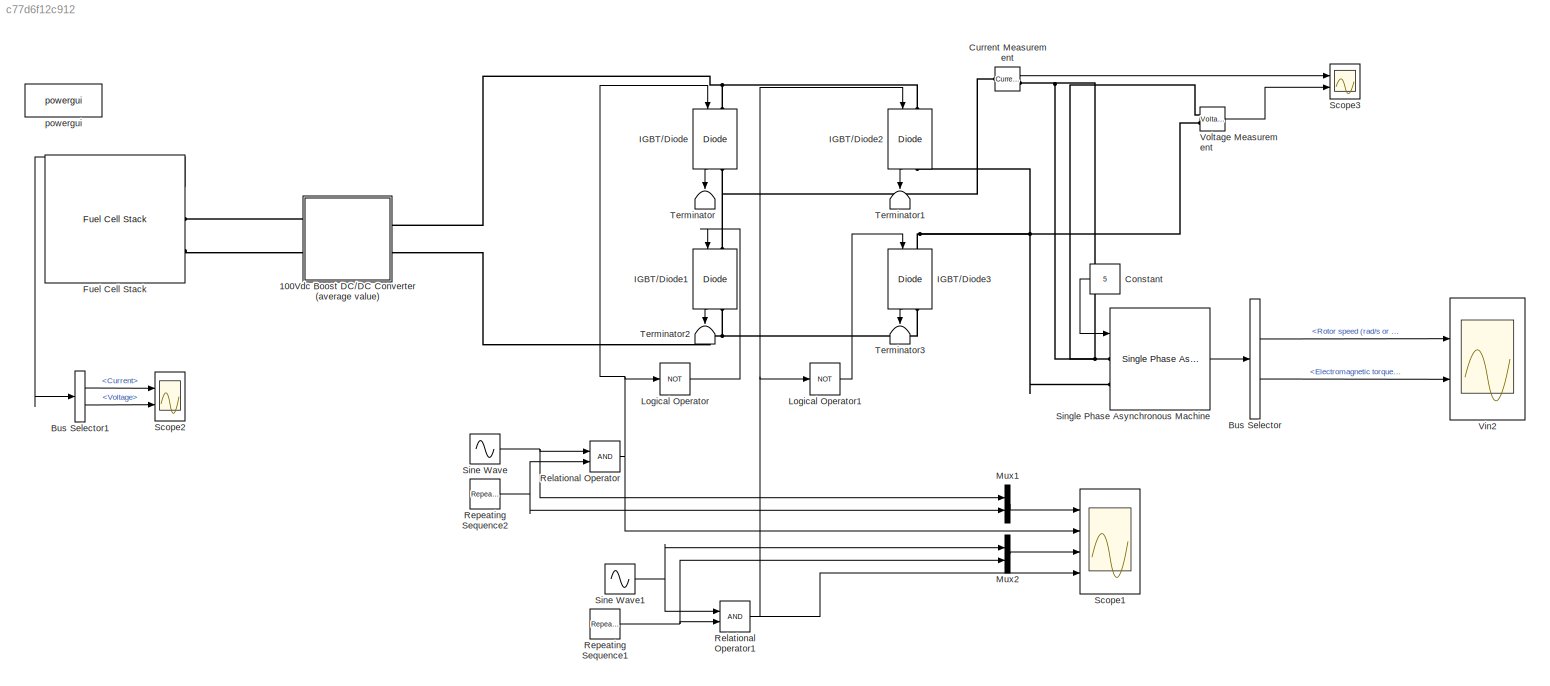
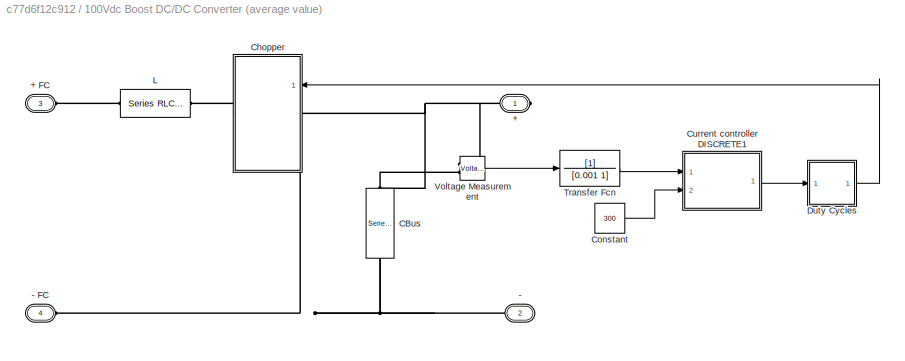
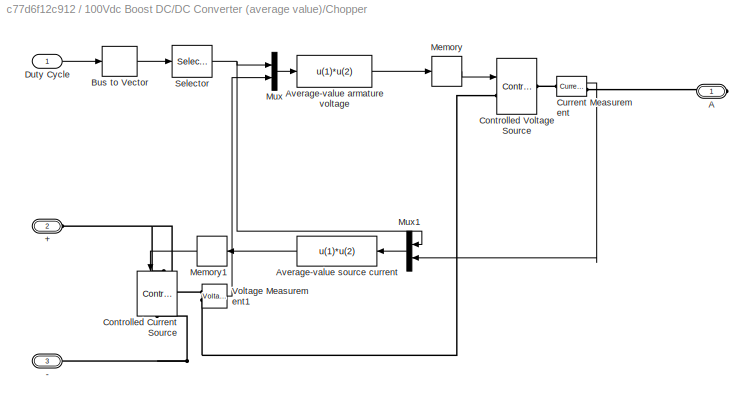
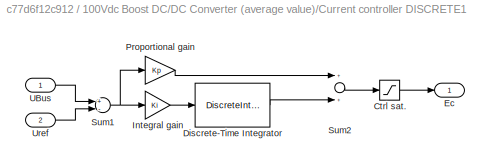
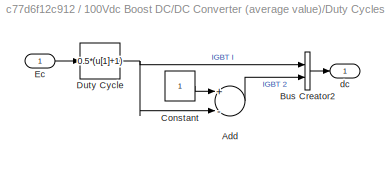
MODEL slx_c77d6f12c912
KIND model
CONFIG AbsTol = auto
CONFIG EnableMultiTasking = on
CONFIG FixedStep = auto
CONFIG MaxStep = auto
CONFIG MinStep = auto
CONFIG RelTol = 1e-3
CONFIG SampleTimeConstraint = Unconstrained
CONFIG Solver = ode45
CONFIG SolverName = ode45
CONFIG StartTime = 0.0
CONFIG StopTime = 5
BLOCK [SubSystem] 100Vdc Boost DC//DC Converter (average value)
  Ports = [0, 0, 0, 0, 0, 2, 2]
  RequestExecContextInheritance = off
BLOCK [PMIOPort] 100Vdc Boost DC//DC Converter (average value)/+
  Side = Right
  Tag = PMCPort
BLOCK [PMIOPort] 100Vdc Boost DC//DC Converter (average value)/+ FC
  Port = 3
  Side = Left
  Tag = PMCPort
BLOCK [PMIOPort] 100Vdc Boost DC//DC Converter (average value)/-
  Port = 2
  Side = Right
  Tag = PMCPort
BLOCK [PMIOPort] 100Vdc Boost DC//DC Converter (average value)/- FC
  Port = 4
  Side = Left
  Tag = PMCPort
BLOCK [Reference] 100Vdc Boost DC//DC Converter (average value)/CBus  REF=powerlib/Elements/Series RLC Branch
  Ports = [0, 0, 0, 0, 0, 1, 1]
  SourceBlock = powerlib/Elements/Series RLC Branch
  SourceProductBaseCode = PS
  SourceProductName = Simscape Electrical
  SourceType = Series RLC Branch
BLOCK [SubSystem] 100Vdc Boost DC//DC Converter (average value)/Chopper
  Ports = [1, 0, 0, 0, 0, 2, 1]
  RequestExecContextInheritance = off
BLOCK [PMIOPort] 100Vdc Boost DC//DC Converter (average value)/Chopper/+
  Port = 2
  Side = Left
BLOCK [PMIOPort] 100Vdc Boost DC//DC Converter (average value)/Chopper/-
  Port = 3
  Side = Left
BLOCK [PMIOPort] 100Vdc Boost DC//DC Converter (average value)/Chopper/A
  Side = Right
BLOCK [Fcn] 100Vdc Boost DC//DC Converter (average value)/Chopper/Average-value armature voltage
  Expr = u(1)*u(2)
BLOCK [Fcn] 100Vdc Boost DC//DC Converter (average value)/Chopper/Average-value source current
  Expr = u(1)*u(2)
BLOCK [BusToVector] 100Vdc Boost DC//DC Converter (average value)/Chopper/Bus to Vector
BLOCK [Reference] 100Vdc Boost DC//DC Converter (average value)/Chopper/Controlled Current Source  REF=powerlib/Electrical
Sources/Controlled Current Source
  Ports = [1, 0, 0, 0, 0, 1, 1]
  SourceBlock = powerlib/Electrical\nSources/Controlled Current Source
  SourceProductBaseCode = PS
  SourceProductName = Simscape Electrical
  SourceType = Controlled Current Source
BLOCK [Reference] 100Vdc Boost DC//DC Converter (average value)/Chopper/Controlled Voltage Source  REF=powerlib/Electrical
Sources/Controlled Voltage Source
  Ports = [1, 0, 0, 0, 0, 1, 1]
  SourceBlock = powerlib/Electrical\nSources/Controlled Voltage Source
  SourceProductBaseCode = PS
  SourceProductName = Simscape Electrical
  SourceType = Controlled Voltage Source
BLOCK [Reference] 100Vdc Boost DC//DC Converter (average value)/Chopper/Current Measurement  REF=powerlib/Measurements/Current Measurement
  AttributesFormatString = \n
  Ports = [0, 1, 0, 0, 0, 1, 1]
  SourceBlock = powerlib/Measurements/Current Measurement
  SourceProductBaseCode = PS
  SourceProductName = Simscape Electrical
  SourceType = Current Measurement
  Tag = PoWeRsYsTeMmEaSuReMeNt
BLOCK [Inport] 100Vdc Boost DC//DC Converter (average value)/Chopper/Duty Cycle
  IconDisplay = Port number
BLOCK [Memory] 100Vdc Boost DC//DC Converter (average value)/Chopper/Memory
BLOCK [Memory] 100Vdc Boost DC//DC Converter (average value)/Chopper/Memory1
BLOCK [Mux] 100Vdc Boost DC//DC Converter (average value)/Chopper/Mux
  DisplayOption = bar
  Inputs = 2
  Ports = [2, 1]
BLOCK [Mux] 100Vdc Boost DC//DC Converter (average value)/Chopper/Mux1
  DisplayOption = bar
  Inputs = 2
  Ports = [2, 1]
BLOCK [Selector] 100Vdc Boost DC//DC Converter (average value)/Chopper/Selector
  IndexOptions = Index vector (dialog)
  Indices = [1]
  InputPortWidth = 2
  OutputSizes = 1
  Ports = [1, 1]
BLOCK [Reference] 100Vdc Boost DC//DC Converter (average value)/Chopper/Voltage Measurement1  REF=powerlib/Measurements/Voltage Measurement
  AttributesFormatString = \n
  Ports = [0, 1, 0, 0, 0, 2]
  SourceBlock = powerlib/Measurements/Voltage Measurement
  SourceProductBaseCode = PS
  SourceProductName = Simscape Electrical
  SourceType = Voltage Measurement
  Tag = PoWeRsYsTeMmEaSuReMeNt
BLOCK [Constant] 100Vdc Boost DC//DC Converter (average value)/Constant
  Value = 300
BLOCK [SubSystem] 100Vdc Boost DC//DC Converter (average value)/Current controller DISCRETE1
  Ports = [2, 1]
  RequestExecContextInheritance = off
BLOCK [Saturate] 100Vdc Boost DC//DC Converter (average value)/Current controller DISCRETE1/Ctrl sat.
  InputPortMap = u0
  LowerLimit = -0.95
  Ports = [1, 1]
  UpperLimit = 0.95
BLOCK [DiscreteIntegrator] 100Vdc Boost DC//DC Converter (average value)/Current controller DISCRETE1/Discrete-Time Integrator
  ICPrevOutput = DiscIntNeverNeededParam
  ICPrevScaledInput = DiscIntNeverNeededParam
  IntegratorMethod = Integration: Trapezoidal
  LimitOutput = on
  LowerSaturationLimit = -0.95
  Ports = [1, 1]
  SampleTime = Ts
  UpperSaturationLimit = 0.95
BLOCK [Outport] 100Vdc Boost DC//DC Converter (average value)/Current controller DISCRETE1/Ec
  IconDisplay = Port number
  InitialOutput = 0
BLOCK [Gain] 100Vdc Boost DC//DC Converter (average value)/Current controller DISCRETE1/Integral gain
  Gain = Ki
BLOCK [Gain] 100Vdc Boost DC//DC Converter (average value)/Current controller DISCRETE1/Proportional gain
  Gain = Kp
BLOCK [Sum] 100Vdc Boost DC//DC Converter (average value)/Current controller DISCRETE1/Sum1
  Inputs = +-
  Ports = [2, 1]
BLOCK [Sum] 100Vdc Boost DC//DC Converter (average value)/Current controller DISCRETE1/Sum2
  Ports = [2, 1]
BLOCK [Inport] 100Vdc Boost DC//DC Converter (average value)/Current controller DISCRETE1/UBus
  IconDisplay = Port number
BLOCK [Inport] 100Vdc Boost DC//DC Converter (average value)/Current controller DISCRETE1/Uref
  IconDisplay = Port number
  Port = 2
BLOCK [SubSystem] 100Vdc Boost DC//DC Converter (average value)/Duty Cycles
  Ports = [1, 1]
  RequestExecContextInheritance = off
BLOCK [Sum] 100Vdc Boost DC//DC Converter (average value)/Duty Cycles/Add
  InputSameDT = off
  Inputs = +-
  OutDataTypeStr = Inherit: Inherit via internal rule
  Ports = [2, 1]
  SaturateOnIntegerOverflow = off
BLOCK [BusCreator] 100Vdc Boost DC//DC Converter (average value)/Duty Cycles/Bus Creator2
  DisplayOption = bar
  InheritFromInputs = on
  Inputs = 2
  Ports = [2, 1]
BLOCK [Constant] 100Vdc Boost DC//DC Converter (average value)/Duty Cycles/Constant
BLOCK [Fcn] 100Vdc Boost DC//DC Converter (average value)/Duty Cycles/Duty Cycle
  Expr = 0.5*(u[1]+1)
BLOCK [Inport] 100Vdc Boost DC//DC Converter (average value)/Duty Cycles/Ec
  IconDisplay = Port number
BLOCK [Outport] 100Vdc Boost DC//DC Converter (average value)/Duty Cycles/dc
  IconDisplay = Port number
BLOCK [Reference] 100Vdc Boost DC//DC Converter (average value)/L  REF=powerlib/Elements/Series RLC Branch
  Ports = [0, 0, 0, 0, 0, 1, 1]
  SourceBlock = powerlib/Elements/Series RLC Branch
  SourceProductBaseCode = PS
  SourceProductName = Simscape Electrical
  SourceType = Series RLC Branch
BLOCK [TransferFcn] 100Vdc Boost DC//DC Converter (average value)/Transfer Fcn
  Denominator = [0.001 1]
BLOCK [Reference] 100Vdc Boost DC//DC Converter (average value)/Voltage Measurement  REF=powerlib/Measurements/Voltage Measurement
  Ports = [0, 1, 0, 0, 0, 2]
  SourceBlock = powerlib/Measurements/Voltage Measurement
  SourceProductBaseCode = PS
  SourceProductName = Simscape Electrical
  SourceType = Voltage Measurement
BLOCK [BusSelector] Bus Selector
  OutputAsBus = off
  OutputSignals = Mechanical.Rotor speed (rad/s or pu),Mechanical.Electromagnetic torque Te (N*m or pu)
  Ports = [1, 2]
BLOCK [BusSelector] Bus Selector1
  OutputAsBus = off
  OutputSignals = Current,Voltage
  Ports = [1, 2]
BLOCK [Constant] Constant
  Value = 5
BLOCK [Reference] Current Measurement  REF=powerlib/Measurements/Current Measurement
  Ports = [0, 1, 0, 0, 0, 1, 1]
  SourceBlock = powerlib/Measurements/Current Measurement
  SourceProductBaseCode = PS
  SourceProductName = Simscape Electrical
  SourceType = Current Measurement
BLOCK [Reference] Fuel Cell Stack  REF=electricdrivelib/Extra Sources/Fuel Cell Stack
  Ports = [0, 1, 0, 0, 0, 0, 2]
  SourceBlock = electricdrivelib/Extra Sources/Fuel Cell Stack
  SourceProductBaseCode = PS
  SourceProductName = Simscape Electrical
  SourceType = Fuel Cell Stack
BLOCK [Reference] IGBT//Diode  REF=powerlib/Power
Electronics/IGBT//Diode
  Ports = [1, 1, 0, 0, 0, 1, 1]
  SourceBlock = powerlib/Power\nElectronics/IGBT//Diode
  SourceProductBaseCode = PS
  SourceProductName = Simscape Electrical
  SourceType = IGBT/Diode
BLOCK [Reference] IGBT//Diode1  REF=powerlib/Power
Electronics/IGBT//Diode
  Ports = [1, 1, 0, 0, 0, 1, 1]
  SourceBlock = powerlib/Power\nElectronics/IGBT//Diode
  SourceProductBaseCode = PS
  SourceProductName = Simscape Electrical
  SourceType = IGBT/Diode
BLOCK [Reference] IGBT//Diode2  REF=powerlib/Power
Electronics/IGBT//Diode
  Ports = [1, 1, 0, 0, 0, 1, 1]
  SourceBlock = powerlib/Power\nElectronics/IGBT//Diode
  SourceProductBaseCode = PS
  SourceProductName = Simscape Electrical
  SourceType = IGBT/Diode
BLOCK [Reference] IGBT//Diode3  REF=powerlib/Power
Electronics/IGBT//Diode
  Ports = [1, 1, 0, 0, 0, 1, 1]
  SourceBlock = powerlib/Power\nElectronics/IGBT//Diode
  SourceProductBaseCode = PS
  SourceProductName = Simscape Electrical
  SourceType = IGBT/Diode
BLOCK [Logic] Logical Operator
  AllPortsSameDT = off
  Operator = NOT
  OutDataTypeStr = boolean
  Ports = [1, 1]
BLOCK [Logic] Logical Operator1
  AllPortsSameDT = off
  Operator = NOT
  OutDataTypeStr = boolean
  Ports = [1, 1]
BLOCK [Mux] Mux1
  DisplayOption = bar
  Inputs = 2
  Ports = [2, 1]
BLOCK [Mux] Mux2
  DisplayOption = bar
  Inputs = 2
  Ports = [2, 1]
BLOCK [RelationalOperator] Relational Operator
  InputSameDT = off
  Ports = [2, 1]
BLOCK [RelationalOperator] Relational Operator1
  InputSameDT = off
  OutDataTypeStr = boolean
  Ports = [2, 1]
BLOCK [Reference] Repeating Sequence1  REF=simulink/Sources/Repeating
Sequence
  Ports = [0, 1]
  SourceBlock = simulink/Sources/Repeating\nSequence
  SourceProductBaseCode = SL
  SourceProductName = Simulink
  SourceType = Repeating table
BLOCK [Reference] Repeating Sequence2  REF=simulink/Sources/Repeating
Sequence
  Ports = [0, 1]
  SourceBlock = simulink/Sources/Repeating\nSequence
  SourceProductBaseCode = SL
  SourceProductName = Simulink
  SourceType = Repeating table
BLOCK [Scope] Scope1
  Floating = off
  NumInputPorts = 4
  Ports = [4]
  ScopeSpecificationString = Simulink.scopes.TimeScopeBlockCfg('CurrentConfiguration', extmgr.ConfigurationSet(extmgr.Configuration('Core','General UI',true),extmgr.Configuration('Core','Source UI',true),extmgr.Configuration('Sources','WiredSimulink',true,'DataLoggingVariableName','ScopeData1','DataLoggingSaveFormat','StructureWithTime','DataLoggingDecimation','1','DataLoggingDecimateData',true),extmgr.Configuration('Visuals'...<+3852ch>
BLOCK [Scope] Scope2
  Floating = off
  NumInputPorts = 2
  Ports = [2]
  ScopeSpecificationString = Simulink.scopes.TimeScopeBlockCfg('CurrentConfiguration', extmgr.ConfigurationSet(extmgr.Configuration('Core','General UI',true),extmgr.Configuration('Core','Source UI',true),extmgr.Configuration('Sources','WiredSimulink',true,'DataLoggingVariableName','ScopeData3','DataLoggingSaveFormat','StructureWithTime','DataLoggingLimitDataPoints',true,'DataLoggingDecimation','1','DataLoggingDecimateData',tr...<+2369ch>
BLOCK [Scope] Scope3
  Floating = off
  NumInputPorts = 2
  Ports = [2]
  ScopeSpecificationString = Simulink.scopes.TimeScopeBlockCfg('CurrentConfiguration', extmgr.ConfigurationSet(extmgr.Configuration('Core','General UI',true),extmgr.Configuration('Core','Source UI',true),extmgr.Configuration('Sources','WiredSimulink',true,'DataLogging',true,'DataLoggingSaveFormat','StructureWithTime','DataLoggingDecimation','1','DataLoggingDecimateData',true),extmgr.Configuration('Visuals','Time Domain',true,...<+2335ch>
BLOCK [Sin] Sine Wave
  Frequency = 2*pi*50
  Ports = [0, 1]
  SampleTime = 50e-6
BLOCK [Sin] Sine Wave1
  Frequency = 2*pi*50
  Phase = pi
  Ports = [0, 1]
  SampleTime = 50e-6
BLOCK [Reference] Single Phase Asynchronous Machine  REF=powerlib/Machines/Single Phase
Asynchronous Machine
  Ports = [1, 1, 0, 0, 0, 2]
  SourceBlock = powerlib/Machines/Single Phase\nAsynchronous Machine
  SourceProductBaseCode = PS
  SourceProductName = Simscape Electrical
  SourceType = Single Phase Asynchronous Machine
BLOCK [Terminator] Terminator
BLOCK [Terminator] Terminator1
BLOCK [Terminator] Terminator2
BLOCK [Terminator] Terminator3
BLOCK [Scope] Vin2
  Floating = off
  NumInputPorts = 2
  Ports = [2]
  ScopeSpecificationString = Simulink.scopes.TimeScopeBlockCfg('CurrentConfiguration', extmgr.ConfigurationSet(extmgr.Configuration('Core','General UI',true),extmgr.Configuration('Core','Source UI',true),extmgr.Configuration('Sources','WiredSimulink',true,'DataLogging',true,'DataLoggingVariableName','ScopeData2','DataLoggingSaveFormat','StructureWithTime','DataLoggingDecimation','1','DataLoggingDecimateData',true),extmgr.Conf...<+2402ch>
BLOCK [Reference] Voltage Measurement  REF=powerlib/Measurements/Voltage Measurement
  Ports = [0, 1, 0, 0, 0, 2]
  SourceBlock = powerlib/Measurements/Voltage Measurement
  SourceProductBaseCode = PS
  SourceProductName = Simscape Electrical
  SourceType = Voltage Measurement
BLOCK [Reference] powergui  REF=powerlib/powergui
  Ports = []
  SourceBlock = powerlib/powergui
  SourceProductBaseCode = PS
  SourceProductName = Simscape Electrical
  SourceType = PSB option menu block
LINE 100Vdc Boost DC//DC Converter (average value)/Chopper/Average-value armature voltage:1 -> 100Vdc Boost DC//DC Converter (average value)/Chopper/Memory:1
LINE 100Vdc Boost DC//DC Converter (average value)/Chopper/Average-value source current:1 -> 100Vdc Boost DC//DC Converter (average value)/Chopper/Memory1:1
LINE 100Vdc Boost DC//DC Converter (average value)/Chopper/Bus to Vector:1 -> 100Vdc Boost DC//DC Converter (average value)/Chopper/Selector:1
LINE 100Vdc Boost DC//DC Converter (average value)/Chopper/Current Measurement:1 -> 100Vdc Boost DC//DC Converter (average value)/Chopper/Mux1:2
LINE 100Vdc Boost DC//DC Converter (average value)/Chopper/Duty Cycle:1 -> 100Vdc Boost DC//DC Converter (average value)/Chopper/Bus to Vector:1
LINE 100Vdc Boost DC//DC Converter (average value)/Chopper/Memory1:1 -> 100Vdc Boost DC//DC Converter (average value)/Chopper/Controlled Current Source:1
LINE 100Vdc Boost DC//DC Converter (average value)/Chopper/Memory:1 -> 100Vdc Boost DC//DC Converter (average value)/Chopper/Controlled Voltage Source:1
LINE 100Vdc Boost DC//DC Converter (average value)/Chopper/Mux1:1 -> 100Vdc Boost DC//DC Converter (average value)/Chopper/Average-value source current:1
LINE 100Vdc Boost DC//DC Converter (average value)/Chopper/Mux:1 -> 100Vdc Boost DC//DC Converter (average value)/Chopper/Average-value armature voltage:1
NET 100Vdc Boost DC//DC Converter (average value)/Chopper/Selector:1 -> 100Vdc Boost DC//DC Converter (average value)/Chopper/Mux1:1, 100Vdc Boost DC//DC Converter (average value)/Chopper/Mux:1
LINE 100Vdc Boost DC//DC Converter (average value)/Chopper/Voltage Measurement1:1 -> 100Vdc Boost DC//DC Converter (average value)/Chopper/Mux:2
LINE 100Vdc Boost DC//DC Converter (average value)/Constant:1 -> 100Vdc Boost DC//DC Converter (average value)/Current controller DISCRETE1:2
LINE 100Vdc Boost DC//DC Converter (average value)/Current controller DISCRETE1/Ctrl sat.:1 -> 100Vdc Boost DC//DC Converter (average value)/Current controller DISCRETE1/Ec:1
LINE 100Vdc Boost DC//DC Converter (average value)/Current controller DISCRETE1/Discrete-Time Integrator:1 -> 100Vdc Boost DC//DC Converter (average value)/Current controller DISCRETE1/Sum2:2
LINE 100Vdc Boost DC//DC Converter (average value)/Current controller DISCRETE1/Integral gain:1 -> 100Vdc Boost DC//DC Converter (average value)/Current controller DISCRETE1/Discrete-Time Integrator:1
LINE 100Vdc Boost DC//DC Converter (average value)/Current controller DISCRETE1/Proportional gain:1 -> 100Vdc Boost DC//DC Converter (average value)/Current controller DISCRETE1/Sum2:1
NET 100Vdc Boost DC//DC Converter (average value)/Current controller DISCRETE1/Sum1:1 -> 100Vdc Boost DC//DC Converter (average value)/Current controller DISCRETE1/Integral gain:1, 100Vdc Boost DC//DC Converter (average value)/Current controller DISCRETE1/Proportional gain:1
LINE 100Vdc Boost DC//DC Converter (average value)/Current controller DISCRETE1/Sum2:1 -> 100Vdc Boost DC//DC Converter (average value)/Current controller DISCRETE1/Ctrl sat.:1
LINE 100Vdc Boost DC//DC Converter (average value)/Current controller DISCRETE1/UBus:1 -> 100Vdc Boost DC//DC Converter (average value)/Current controller DISCRETE1/Sum1:1
LINE 100Vdc Boost DC//DC Converter (average value)/Current controller DISCRETE1/Uref:1 -> 100Vdc Boost DC//DC Converter (average value)/Current controller DISCRETE1/Sum1:2
LINE 100Vdc Boost DC//DC Converter (average value)/Current controller DISCRETE1:1 -> 100Vdc Boost DC//DC Converter (average value)/Duty Cycles:1
LINE 100Vdc Boost DC//DC Converter (average value)/Duty Cycles/Add:1 -> 100Vdc Boost DC//DC Converter (average value)/Duty Cycles/Bus Creator2:2
LINE 100Vdc Boost DC//DC Converter (average value)/Duty Cycles/Bus Creator2:1 -> 100Vdc Boost DC//DC Converter (average value)/Duty Cycles/dc:1
LINE 100Vdc Boost DC//DC Converter (average value)/Duty Cycles/Constant:1 -> 100Vdc Boost DC//DC Converter (average value)/Duty Cycles/Add:1
NET 100Vdc Boost DC//DC Converter (average value)/Duty Cycles/Duty Cycle:1 -> 100Vdc Boost DC//DC Converter (average value)/Duty Cycles/Add:2, 100Vdc Boost DC//DC Converter (average value)/Duty Cycles/Bus Creator2:1
LINE 100Vdc Boost DC//DC Converter (average value)/Duty Cycles/Ec:1 -> 100Vdc Boost DC//DC Converter (average value)/Duty Cycles/Duty Cycle:1
LINE 100Vdc Boost DC//DC Converter (average value)/Duty Cycles:1 -> 100Vdc Boost DC//DC Converter (average value)/Chopper:1
LINE 100Vdc Boost DC//DC Converter (average value)/Transfer Fcn:1 -> 100Vdc Boost DC//DC Converter (average value)/Current controller DISCRETE1:1
LINE 100Vdc Boost DC//DC Converter (average value)/Voltage Measurement:1 -> 100Vdc Boost DC//DC Converter (average value)/Transfer Fcn:1
LINE Bus Selector1:1 -> Scope2:1
LINE Bus Selector1:2 -> Scope2:2
LINE Bus Selector:1 -> Vin2:1
LINE Bus Selector:2 -> Vin2:2
LINE Constant:1 -> Single Phase Asynchronous Machine:1
LINE Current Measurement:1 -> Scope3:1
LINE Fuel Cell Stack:1 -> Bus Selector1:1
LINE IGBT//Diode1:1 -> Terminator2:1
LINE IGBT//Diode2:1 -> Terminator1:1
LINE IGBT//Diode3:1 -> Terminator3:1
LINE IGBT//Diode:1 -> Terminator:1
LINE Logical Operator1:1 -> IGBT//Diode3:1
LINE Logical Operator:1 -> IGBT//Diode1:1
LINE Mux1:1 -> Scope1:1
LINE Mux2:1 -> Scope1:3
NET Relational Operator1:1 -> IGBT//Diode2:1, Logical Operator1:1, Scope1:4
NET Relational Operator:1 -> IGBT//Diode:1, Logical Operator:1, Scope1:2
NET Repeating Sequence1:1 -> Mux2:2, Relational Operator1:2
NET Repeating Sequence2:1 -> Mux1:2, Relational Operator:2
NET Sine Wave1:1 -> Mux2:1, Relational Operator1:1
NET Sine Wave:1 -> Mux1:1, Relational Operator:1
LINE Single Phase Asynchronous Machine:1 -> Bus Selector:1
LINE Voltage Measurement:1 -> Scope3:2
PLINE 100Vdc Boost DC//DC Converter (average value)/+ FC:RConn1 -- 100Vdc Boost DC//DC Converter (average value)/L:RConn1
PNET net1: 100Vdc Boost DC//DC Converter (average value)/+:RConn1 -- 100Vdc Boost DC//DC Converter (average value)/CBus:LConn1 -- 100Vdc Boost DC//DC Converter (average value)/Chopper:LConn1 -- 100Vdc Boost DC//DC Converter (average value)/Voltage Measurement:LConn1
PNET net2: 100Vdc Boost DC//DC Converter (average value)/- FC:RConn1 -- 100Vdc Boost DC//DC Converter (average value)/-:RConn1 -- 100Vdc Boost DC//DC Converter (average value)/CBus:RConn1 -- 100Vdc Boost DC//DC Converter (average value)/Chopper:LConn2 -- 100Vdc Boost DC//DC Converter (average value)/Voltage Measurement:LConn2
PNET net3: 100Vdc Boost DC//DC Converter (average value)/Chopper/+:RConn1 -- 100Vdc Boost DC//DC Converter (average value)/Chopper/Controlled Current Source:LConn1 -- 100Vdc Boost DC//DC Converter (average value)/Chopper/Voltage Measurement1:LConn1
PNET net4: 100Vdc Boost DC//DC Converter (average value)/Chopper/-:RConn1 -- 100Vdc Boost DC//DC Converter (average value)/Chopper/Controlled Current Source:RConn1 -- 100Vdc Boost DC//DC Converter (average value)/Chopper/Controlled Voltage Source:LConn1 -- 100Vdc Boost DC//DC Converter (average value)/Chopper/Voltage Measurement1:LConn2
PLINE 100Vdc Boost DC//DC Converter (average value)/Chopper/A:RConn1 -- 100Vdc Boost DC//DC Converter (average value)/Chopper/Current Measurement:RConn1
PLINE 100Vdc Boost DC//DC Converter (average value)/Chopper/Controlled Voltage Source:RConn1 -- 100Vdc Boost DC//DC Converter (average value)/Chopper/Current Measurement:LConn1
PLINE 100Vdc Boost DC//DC Converter (average value)/Chopper:RConn1 -- 100Vdc Boost DC//DC Converter (average value)/L:LConn1
PLINE 100Vdc Boost DC//DC Converter (average value):LConn1 -- Fuel Cell Stack:RConn1
PLINE 100Vdc Boost DC//DC Converter (average value):LConn2 -- Fuel Cell Stack:RConn2
PNET net5: 100Vdc Boost DC//DC Converter (average value):RConn1 -- IGBT//Diode2:LConn1 -- IGBT//Diode:LConn1
PNET net6: 100Vdc Boost DC//DC Converter (average value):RConn2 -- IGBT//Diode1:RConn1 -- IGBT//Diode3:RConn1
PNET net7: Current Measurement:LConn1 -- IGBT//Diode1:LConn1 -- IGBT//Diode:RConn1
PNET net8: Current Measurement:RConn1 -- Single Phase Asynchronous Machine:LConn1 -- Voltage Measurement:LConn1
PNET net9: IGBT//Diode2:RConn1 -- IGBT//Diode3:LConn1 -- Single Phase Asynchronous Machine:LConn2 -- Voltage Measurement:LConn2
note: NET lines group one-source signal fan-out (src -> all destinations, sorted); 1:1 wires keep LINE; PNET lines group multi-terminal physical nets as a canonical sorted terminal list (undirected conserving connections); 2-terminal nets keep the pairwise PLINE form
